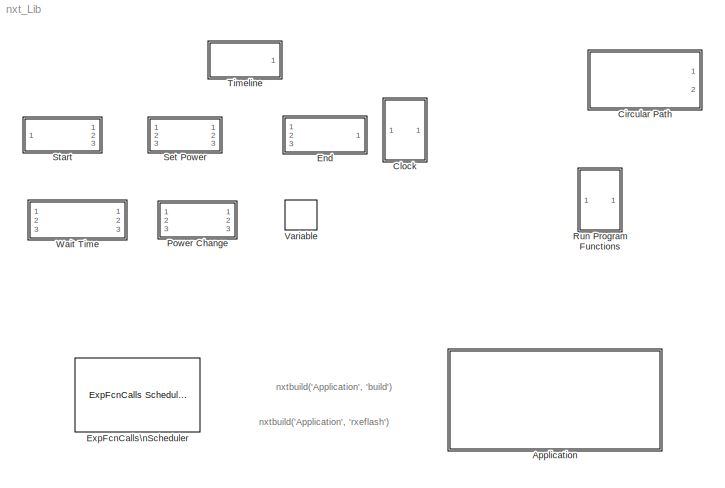
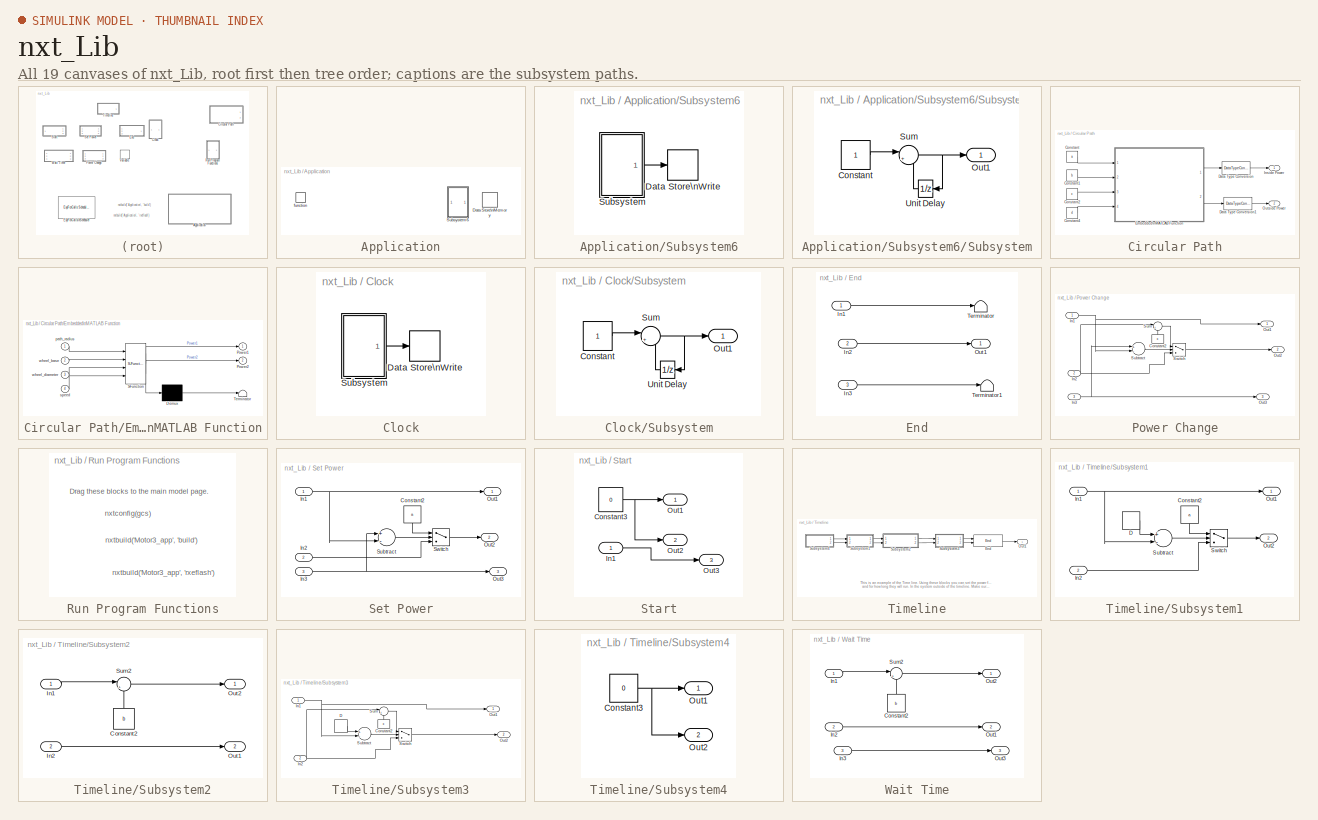
[diagram: thumbnail index - all 19 canvases of the model, root first then tree order]
MODEL nxt_Lib
KIND library
BLOCK [SubSystem] Application
  FunctionWithSeparateData = off
  MaskHideContents = off
  MinAlgLoopOccurrences = off
  Opaque = off
  Ports = [0, 0, 0, 1]
  PropExecContextOutsideSubsystem = off
  RTWSystemCode = Auto
  RequestExecContextInheritance = off
  SID = 1
BLOCK [DataStoreMemory] Application/Data Store\nMemory
  DataStoreName = curT
  OutDataType = fixdt(1, 16)
  OutScaling = 2^0
  RTWStateStorageClass = Auto
  ReadBeforeWriteMsg = warning
  SID = 20
  VectorParams1D = on
  WriteAfterReadMsg = warning
  WriteAfterWriteMsg = warning
BLOCK [SubSystem] Application/Subsystem6
  AncestorBlock = nxt_Lib/Timeline/Subsystem6
  FunctionWithSeparateData = off
  MaskDescription = Contains the counter
  MaskDisplay = disp('Clock')
  MaskHideContents = off
  MaskIconFrame = on
  MaskIconOpaque = on
  MaskIconRotate = none
  MaskIconUnits = autoscale
  MaskPortRotate = default
  MaskType = Clock
  MinAlgLoopOccurrences = off
  Opaque = off
  Ports = []
  PropExecContextOutsideSubsystem = off
  RTWSystemCode = Auto
  RequestExecContextInheritance = off
  SID = 21
BLOCK [DataStoreWrite] Application/Subsystem6/Data Store\nWrite
  DataStoreName = curT
  SID = 1
  SampleTime = -1
BLOCK [SubSystem] Application/Subsystem6/Subsystem
  FunctionWithSeparateData = off
  MaskDescription = Increments a counter that acts as a clock that changes per unit time.
  MaskDisplay = disp('Clock')
  MaskHideContents = off
  MaskIconFrame = on
  MaskIconOpaque = on
  MaskIconRotate = none
  MaskIconUnits = autoscale
  MaskPortRotate = default
  MaskType = Clock
  MinAlgLoopOccurrences = off
  Opaque = off
  Ports = [0, 1]
  PropExecContextOutsideSubsystem = off
  RTWSystemCode = Auto
  RequestExecContextInheritance = off
  SID = 2
BLOCK [Constant] Application/Subsystem6/Subsystem/Constant
  OutDataType = fixdt(1, 16)
  OutDataTypeMode = int32
  OutDataTypeStr = int32
  OutScaling = 2^0
  SID = 3
  SampleTime = -1
BLOCK [Outport] Application/Subsystem6/Subsystem/Out1
  IconDisplay = Port number
  SID = 6
BLOCK [Sum] Application/Subsystem6/Subsystem/Sum
  AccumDataTypeStr = int8
  IconShape = round
  InputSameDT = off
  Inputs = |++
  OutDataType = fixdt(1, 16)
  OutScaling = 2^0
  Ports = [2, 1]
  SID = 4
  SaturateOnIntegerOverflow = off
BLOCK [UnitDelay] Application/Subsystem6/Subsystem/Unit Delay
  SID = 5
  SampleTime = -1
BLOCK [TriggerPort] Application/function
  Ports = []
  SID = 19
  StatesWhenEnabling = held
  TriggerType = function-call
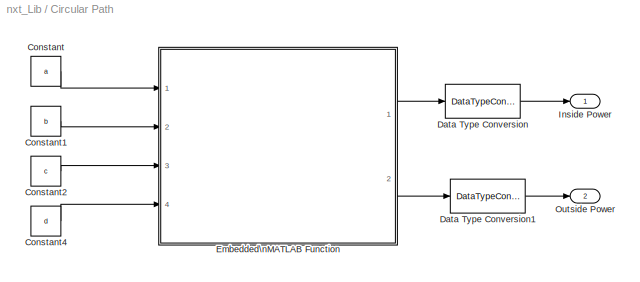
BLOCK [SubSystem] Circular Path
  FunctionWithSeparateData = off
  MaskCallbackString = |||
  MaskDescription = Inputs the power to both motors that will cause the ECRobot to run in a Circular Path.
  MaskDisplay = disp('Circular Path')
  MaskEnableString = on,on,on,on
  MaskHideContents = off
  MaskIconFrame = on
  MaskIconOpaque = on
  MaskIconRotate = none
  MaskIconUnits = autoscale
  MaskPortRotate = default
  MaskPromptString = Path Radius|Wheel Base|Wheel Diameter|Speed
  MaskStyleString = edit,edit,edit,edit
  MaskToolTipString = on,on,on,on
  MaskTunableValueString = on,on,on,on
  MaskType = Circular Path
  MaskValueString = 1|.125|.08|20
  MaskVariables = a=@1;b=@2;c=@3;d=@4;
  MaskVisibilityString = on,on,on,on
  MinAlgLoopOccurrences = off
  Opaque = off
  Ports = [0, 2]
  PropExecContextOutsideSubsystem = off
  RTWSystemCode = Auto
  RequestExecContextInheritance = off
  SID = 2
BLOCK [Constant] Circular Path/Constant
  OutDataType = sfix(16)
  OutDataTypeMode = single
  OutDataTypeStr = single
  OutScaling = 2^0
  SID = 22
  SampleTime = -1
  Value = a
BLOCK [Constant] Circular Path/Constant1
  OutDataType = sfix(16)
  OutDataTypeMode = single
  OutDataTypeStr = single
  OutScaling = 2^0
  SID = 23
  SampleTime = -1
  Value = b
BLOCK [Constant] Circular Path/Constant2
  OutDataType = sfix(16)
  OutDataTypeMode = single
  OutDataTypeStr = single
  OutScaling = 2^0
  SID = 24
  SampleTime = -1
  Value = c
BLOCK [Constant] Circular Path/Constant4
  OutDataType = sfix(16)
  OutDataTypeMode = single
  OutDataTypeStr = single
  OutScaling = 2^0
  SID = 25
  SampleTime = -1
  Value = d
BLOCK [DataTypeConversion] Circular Path/Data Type Conversion
  OutDataType = sfix(16)
  OutDataTypeMode = int8
  OutDataTypeStr = int8
  OutScaling = 2^0
  RndMeth = Floor
  SID = 26
  SaturateOnIntegerOverflow = off
BLOCK [DataTypeConversion] Circular Path/Data Type Conversion1
  OutDataType = sfix(16)
  OutDataTypeMode = int8
  OutDataTypeStr = int8
  OutScaling = 2^0
  RndMeth = Floor
  SID = 27
  SaturateOnIntegerOverflow = off
BLOCK [SubSystem] Circular Path/Embedded\nMATLAB Function
  FunctionWithSeparateData = off
  MaskDescription = Embedded MATLAB block
  MaskDisplay = disp('circle_path');
  MaskHideContents = off
  MaskIconFrame = on
  MaskIconOpaque = off
  MaskIconRotate = none
  MaskIconUnits = autoscale
  MaskPortRotate = default
  MaskSelfModifiable = on
  MaskType = Stateflow
  MinAlgLoopOccurrences = off
  Opaque = off
  PermitHierarchicalResolution = ExplicitOnly
  Ports = [4, 2]
  PropExecContextOutsideSubsystem = off
  RTWSystemCode = Auto
  RequestExecContextInheritance = off
  SID = 28
BLOCK [Demux] Circular Path/Embedded\nMATLAB Function/ Demux 
  Outputs = 1
  Ports = [1, 1]
  SID = 11
BLOCK [S-Function] Circular Path/Embedded\nMATLAB Function/ SFunction 
  EnableBusSupport = off
  FunctionName = sf_sfun
  PortCounts = [4 3]
  Ports = [4, 3]
  SID = 10
  Tag = Stateflow S-Function nxt_Lib 2
BLOCK [Terminator] Circular Path/Embedded\nMATLAB Function/ Terminator 
  SID = 13
BLOCK [Outport] Circular Path/Embedded\nMATLAB Function/Power1
  IconDisplay = Port number
  OutDataType = sfix(16)
  OutScaling = 2^0
  SID = 8
BLOCK [Outport] Circular Path/Embedded\nMATLAB Function/Power2
  IconDisplay = Port number
  Port = 2
  SID = 9
BLOCK [Inport] Circular Path/Embedded\nMATLAB Function/path_radius
  IconDisplay = Port number
  OutDataType = sfix(16)
  OutScaling = 2^0
  SID = 1
BLOCK [Inport] Circular Path/Embedded\nMATLAB Function/speed
  IconDisplay = Port number
  Port = 4
  SID = 4
BLOCK [Inport] Circular Path/Embedded\nMATLAB Function/wheel_base
  IconDisplay = Port number
  Port = 2
  SID = 2
BLOCK [Inport] Circular Path/Embedded\nMATLAB Function/wheel_diameter
  IconDisplay = Port number
  Port = 3
  SID = 3
BLOCK [Outport] Circular Path/Inside Power
  IconDisplay = Port number
  SID = 29
BLOCK [Outport] Circular Path/Outside Power
  IconDisplay = Port number
  Port = 2
  SID = 30
BLOCK [SubSystem] Clock
  AncestorBlock = nxt_Lib/Timeline/Subsystem6
  FunctionWithSeparateData = off
  MaskDescription = Contains the counter
  MaskDisplay = disp('Clock')
  MaskHideContents = off
  MaskIconFrame = on
  MaskIconOpaque = on
  MaskIconRotate = none
  MaskIconUnits = autoscale
  MaskPortRotate = default
  MaskType = Clock
  MinAlgLoopOccurrences = off
  Opaque = off
  Ports = []
  PropExecContextOutsideSubsystem = off
  RTWSystemCode = Auto
  RequestExecContextInheritance = off
  SID = 3
BLOCK [DataStoreWrite] Clock/Data Store\nWrite
  DataStoreName = curT
  SID = 1
  SampleTime = -1
BLOCK [SubSystem] Clock/Subsystem
  FunctionWithSeparateData = off
  MaskDescription = Increments a counter that acts as a clock that changes per unit time.
  MaskDisplay = disp('Clock')
  MaskHideContents = off
  MaskIconFrame = on
  MaskIconOpaque = on
  MaskIconRotate = none
  MaskIconUnits = autoscale
  MaskPortRotate = default
  MaskType = Clock
  MinAlgLoopOccurrences = off
  Opaque = off
  Ports = [0, 1]
  PropExecContextOutsideSubsystem = off
  RTWSystemCode = Auto
  RequestExecContextInheritance = off
  SID = 2
BLOCK [Constant] Clock/Subsystem/Constant
  OutDataType = fixdt(1, 16)
  OutDataTypeMode = int32
  OutDataTypeStr = int32
  OutScaling = 2^0
  SID = 3
  SampleTime = -1
BLOCK [Outport] Clock/Subsystem/Out1
  IconDisplay = Port number
  SID = 6
BLOCK [Sum] Clock/Subsystem/Sum
  AccumDataTypeStr = int8
  IconShape = round
  InputSameDT = off
  Inputs = |++
  OutDataType = fixdt(1, 16)
  OutScaling = 2^0
  Ports = [2, 1]
  SID = 4
  SaturateOnIntegerOverflow = off
BLOCK [UnitDelay] Clock/Subsystem/Unit Delay
  SID = 5
  SampleTime = -1
BLOCK [SubSystem] End
  FunctionWithSeparateData = off
  MaskDescription = This terminates the time line and passes the final motor speed to the motor. However, it leaves everything running at it's previous power.
  MaskDisplay = disp('End')
  MaskHideContents = off
  MaskIconFrame = on
  MaskIconOpaque = on
  MaskIconRotate = none
  MaskIconUnits = autoscale
  MaskPortRotate = default
  MaskType = End Program
  MinAlgLoopOccurrences = off
  Opaque = off
  Ports = [3, 1]
  PropExecContextOutsideSubsystem = off
  RTWSystemCode = Auto
  RequestExecContextInheritance = off
  SID = 4
BLOCK [Inport] End/In1
  IconDisplay = Port number
  SID = 31
BLOCK [Inport] End/In2
  DataType = int32
  IconDisplay = Port number
  OutDataTypeStr = int32
  Port = 2
  SID = 32
BLOCK [Inport] End/In3
  IconDisplay = Port number
  Port = 3
  SID = 33
BLOCK [Outport] End/Out1
  IconDisplay = Port number
  SID = 37
BLOCK [Terminator] End/Terminator
  SID = 35
BLOCK [Terminator] End/Terminator1
  SID = 36
BLOCK [Reference] ExpFcnCalls\nScheduler  REF=ecrobot_nxt_lib/ExpFcnCalls Scheduler  (lib defined in mdl_4d1b16930ca4)
  Ports = [0, 1]
  SID = 38
  SourceBlock = ecrobot_nxt_lib/ExpFcnCalls Scheduler
  SourceType = Exported Function-Calls Scheduler
  bd_mode = Slave
  fcname = 'fcn'
  fctrigger = [1]
  platform = OSEK
  stacksize = [512]
  ts = 0.001
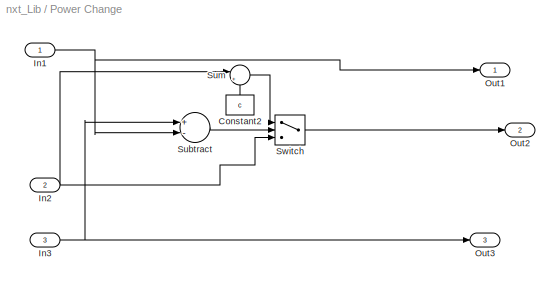
BLOCK [SubSystem] Power Change
  FunctionWithSeparateData = off
  MaskDescription = This will add or subtract from the power amount
  MaskDisplay = disp('Power Change')
  MaskEnableString = on
  MaskHideContents = off
  MaskIconFrame = on
  MaskIconOpaque = on
  MaskIconRotate = none
  MaskIconUnits = autoscale
  MaskPortRotate = default
  MaskPromptString = Power Change
  MaskStyleString = edit
  MaskToolTipString = on
  MaskTunableValueString = on
  MaskType = Power Change
  MaskValueString = 60
  MaskVariables = c=@1;
  MaskVisibilityString = on
  MinAlgLoopOccurrences = off
  Opaque = off
  Ports = [3, 3]
  PropExecContextOutsideSubsystem = off
  RTWSystemCode = Auto
  RequestExecContextInheritance = off
  SID = 5
BLOCK [Constant] Power Change/Constant2
  OutDataType = fixdt(1, 16)
  OutDataTypeMode = int32
  OutDataTypeStr = int32
  OutScaling = 2^0
  SID = 42
  SampleTime = -1
  Value = c
BLOCK [Inport] Power Change/In1
  IconDisplay = Port number
  SID = 39
BLOCK [Inport] Power Change/In2
  IconDisplay = Port number
  Port = 2
  SID = 40
BLOCK [Inport] Power Change/In3
  IconDisplay = Port number
  Port = 3
  SID = 41
BLOCK [Outport] Power Change/Out1
  IconDisplay = Port number
  SID = 46
BLOCK [Outport] Power Change/Out2
  IconDisplay = Port number
  Port = 2
  SID = 47
BLOCK [Outport] Power Change/Out3
  IconDisplay = Port number
  Port = 3
  SID = 48
BLOCK [Sum] Power Change/Subtract
  InputSameDT = off
  Inputs = +-
  OutDataType = fixdt(1, 16)
  OutDataTypeMode = Inherit via internal rule
  OutDataTypeStr = Inherit: Inherit via internal rule
  OutScaling = 2^-10
  Ports = [2, 1]
  SID = 43
  SaturateOnIntegerOverflow = off
BLOCK [Sum] Power Change/Sum
  IconShape = round
  InputSameDT = off
  Inputs = |++
  OutDataType = sfix(16)
  OutDataTypeMode = Inherit via internal rule
  OutDataTypeStr = Inherit: Inherit via internal rule
  OutScaling = 2^0
  Ports = [2, 1]
  SID = 44
  SaturateOnIntegerOverflow = off
BLOCK [Switch] Power Change/Switch
  Criteria = u2 > Threshold
  InputSameDT = off
  OutDataType = fixdt(1, 16)
  OutScaling = 2^0
  SID = 45
  SaturateOnIntegerOverflow = off
BLOCK [SubSystem] Run Program Functions
  FunctionWithSeparateData = off
  MaskHideContents = off
  MinAlgLoopOccurrences = off
  Opaque = off
  Ports = []
  PropExecContextOutsideSubsystem = off
  RTWSystemCode = Auto
  RequestExecContextInheritance = off
  SID = 6
BLOCK [SubSystem] Set Power
  FunctionWithSeparateData = off
  MaskDescription = This box sets the power
  MaskDisplay = disp('Set Power')
  MaskEnableString = on
  MaskHideContents = off
  MaskIconFrame = on
  MaskIconOpaque = on
  MaskIconRotate = none
  MaskIconUnits = autoscale
  MaskPortRotate = default
  MaskPromptString = Set Power
  MaskStyleString = edit
  MaskToolTipString = on
  MaskTunableValueString = on
  MaskType = Set Power
  MaskValueString = 60
  MaskVariables = a=@1;
  MaskVisibilityString = on
  MinAlgLoopOccurrences = off
  Opaque = off
  Ports = [3, 3]
  PropExecContextOutsideSubsystem = off
  RTWSystemCode = Auto
  RequestExecContextInheritance = off
  SID = 7
BLOCK [Constant] Set Power/Constant2
  OutDataType = fixdt(1, 16)
  OutDataTypeMode = int32
  OutDataTypeStr = int32
  OutScaling = 2^0
  SID = 52
  SampleTime = -1
  Value = a
BLOCK [Inport] Set Power/In1
  IconDisplay = Port number
  SID = 49
BLOCK [Inport] Set Power/In2
  IconDisplay = Port number
  Port = 2
  SID = 50
BLOCK [Inport] Set Power/In3
  IconDisplay = Port number
  Port = 3
  SID = 51
BLOCK [Outport] Set Power/Out1
  IconDisplay = Port number
  SID = 55
BLOCK [Outport] Set Power/Out2
  IconDisplay = Port number
  Port = 2
  SID = 56
BLOCK [Outport] Set Power/Out3
  IconDisplay = Port number
  Port = 3
  SID = 57
BLOCK [Sum] Set Power/Subtract
  InputSameDT = off
  Inputs = +-
  OutDataType = fixdt(1, 16)
  OutScaling = 2^-10
  Ports = [2, 1]
  SID = 53
  SaturateOnIntegerOverflow = off
BLOCK [Switch] Set Power/Switch
  Criteria = u2 > Threshold
  InputSameDT = off
  OutDataType = fixdt(1, 16)
  OutScaling = 2^0
  SID = 54
  SaturateOnIntegerOverflow = off
BLOCK [SubSystem] Start
  FunctionWithSeparateData = off
  MaskDescription = Initializes the timeline
  MaskDisplay = disp('Start')
  MaskHideContents = off
  MaskIconFrame = on
  MaskIconOpaque = on
  MaskIconRotate = none
  MaskIconUnits = autoscale
  MaskPortRotate = default
  MaskType = Start
  MinAlgLoopOccurrences = off
  Opaque = off
  Ports = [1, 3]
  PropExecContextOutsideSubsystem = off
  RTWSystemCode = Auto
  RequestExecContextInheritance = off
  SID = 8
BLOCK [Constant] Start/Constant3
  OutDataType = fixdt(1, 16)
  OutDataTypeMode = int32
  OutDataTypeStr = int32
  OutScaling = 2^0
  SID = 59
  SampleTime = 1
  Value = 0
BLOCK [Inport] Start/In1
  IconDisplay = Port number
  SID = 58
BLOCK [Outport] Start/Out1
  IconDisplay = Port number
  SID = 60
BLOCK [Outport] Start/Out2
  IconDisplay = Port number
  Port = 2
  SID = 61
BLOCK [Outport] Start/Out3
  IconDisplay = Port number
  Port = 3
  SID = 62
BLOCK [SubSystem] Timeline
  AncestorBlock = nxt_Lib/Timeline
  FunctionWithSeparateData = off
  MaskHideContents = off
  MinAlgLoopOccurrences = off
  Opaque = off
  Ports = [0, 1]
  PropExecContextOutsideSubsystem = off
  RTWSystemCode = Auto
  RequestExecContextInheritance = off
  SID = 9
BLOCK [Reference] Timeline/End  REF=nxt_Lib/End
  FunctionWithSeparateData = off
  Ports = [2, 1]
  RTWMemSecDataConstants = Inherit from model
  RTWMemSecDataInternal = Inherit from model
  RTWMemSecDataParameters = Inherit from model
  RTWMemSecFuncExecute = Inherit from model
  RTWMemSecFuncInitTerm = Inherit from model
  SID = 1
  ShowPortLabels = FromPortIcon
  SourceBlock = nxt_Lib/End
  SourceType = End Program
  SystemSampleTime = -1
BLOCK [Outport] Timeline/Out1
  IconDisplay = Port number
  SID = 32
BLOCK [SubSystem] Timeline/Subsystem1
  FunctionWithSeparateData = off
  MaskDescription = This box sets the power
  MaskDisplay = disp('Set Power')
  MaskEnableString = on
  MaskHideContents = off
  MaskIconFrame = on
  MaskIconOpaque = on
  MaskIconRotate = none
  MaskIconUnits = autoscale
  MaskPortRotate = default
  MaskPromptString = Set Power
  MaskStyleString = edit
  MaskToolTipString = on
  MaskTunableValueString = on
  MaskType = Set Power
  MaskValueString = 0
  MaskVariables = a=@1;
  MaskVisibilityString = on
  MinAlgLoopOccurrences = off
  Opaque = off
  Ports = [2, 2]
  PropExecContextOutsideSubsystem = off
  RTWSystemCode = Auto
  RequestExecContextInheritance = off
  SID = 2
BLOCK [Constant] Timeline/Subsystem1/Constant2
  OutDataType = fixdt(1, 16)
  OutDataTypeMode = int8
  OutDataTypeStr = int8
  OutScaling = 2^0
  SID = 5
  SampleTime = -1
  Value = a
BLOCK [DataStoreRead] Timeline/Subsystem1/D
  DataStoreName = curT
  SID = 6
  SampleTime = -1
BLOCK [Inport] Timeline/Subsystem1/In1
  IconDisplay = Port number
  SID = 3
BLOCK [Inport] Timeline/Subsystem1/In2
  IconDisplay = Port number
  Port = 2
  SID = 4
BLOCK [Outport] Timeline/Subsystem1/Out1
  IconDisplay = Port number
  SID = 9
BLOCK [Outport] Timeline/Subsystem1/Out2
  IconDisplay = Port number
  Port = 2
  SID = 10
BLOCK [Sum] Timeline/Subsystem1/Subtract
  InputSameDT = off
  Inputs = +-
  OutDataType = fixdt(1, 16)
  OutScaling = 2^-10
  Ports = [2, 1]
  SID = 7
  SaturateOnIntegerOverflow = off
BLOCK [Switch] Timeline/Subsystem1/Switch
  Criteria = u2 > Threshold
  InputSameDT = off
  OutDataType = fixdt(1, 16)
  OutScaling = 2^0
  SID = 8
  SaturateOnIntegerOverflow = off
BLOCK [SubSystem] Timeline/Subsystem2
  FunctionWithSeparateData = off
  MaskDisplay = disp('Wait Time')
  MaskEnableString = on
  MaskHideContents = off
  MaskIconFrame = on
  MaskIconOpaque = on
  MaskIconRotate = none
  MaskIconUnits = autoscale
  MaskPortRotate = default
  MaskPromptString = Wait Time (seconds)
  MaskStyleString = edit
  MaskToolTipString = on
  MaskTunableValueString = on
  MaskType = Wait Time
  MaskValueString = 5000
  MaskVariables = b=@1;
  MaskVisibilityString = on
  MinAlgLoopOccurrences = off
  Opaque = off
  Ports = [2, 2]
  PropExecContextOutsideSubsystem = off
  RTWSystemCode = Auto
  RequestExecContextInheritance = off
  SID = 11
BLOCK [Constant] Timeline/Subsystem2/Constant2
  OutDataType = fixdt(1, 16)
  OutDataTypeMode = int32
  OutDataTypeStr = int32
  OutScaling = 2^0
  SID = 14
  SampleTime = -1
  Value = b
BLOCK [Inport] Timeline/Subsystem2/In1
  IconDisplay = Port number
  SID = 12
BLOCK [Inport] Timeline/Subsystem2/In2
  IconDisplay = Port number
  Port = 2
  SID = 13
BLOCK [Outport] Timeline/Subsystem2/Out1
  IconDisplay = Port number
  Port = 2
  SID = 17
BLOCK [Outport] Timeline/Subsystem2/Out2
  IconDisplay = Port number
  SID = 16
BLOCK [Sum] Timeline/Subsystem2/Sum2
  IconShape = round
  InputSameDT = off
  Inputs = |++
  OutDataType = fixdt(1, 16)
  OutScaling = 2^0
  Ports = [2, 1]
  SID = 15
  SaturateOnIntegerOverflow = off
BLOCK [SubSystem] Timeline/Subsystem3
  FunctionWithSeparateData = off
  MaskDescription = This will add or subtract from the power amount
  MaskDisplay = disp('Power Change')
  MaskEnableString = on
  MaskHideContents = off
  MaskIconFrame = on
  MaskIconOpaque = on
  MaskIconRotate = none
  MaskIconUnits = autoscale
  MaskPortRotate = default
  MaskPromptString = Power Change
  MaskStyleString = edit
  MaskToolTipString = on
  MaskTunableValueString = on
  MaskType = Power Change
  MaskValueString = 100
  MaskVariables = c=@1;
  MaskVisibilityString = on
  MinAlgLoopOccurrences = off
  Opaque = off
  Ports = [2, 2]
  PropExecContextOutsideSubsystem = off
  RTWSystemCode = Auto
  RequestExecContextInheritance = off
  SID = 18
BLOCK [Constant] Timeline/Subsystem3/Constant2
  OutDataType = fixdt(1, 16)
  OutDataTypeMode = int32
  OutDataTypeStr = int32
  OutScaling = 2^0
  SID = 21
  SampleTime = -1
  Value = c
BLOCK [DataStoreRead] Timeline/Subsystem3/D
  DataStoreName = curT
  SID = 22
  SampleTime = -1
BLOCK [Inport] Timeline/Subsystem3/In1
  IconDisplay = Port number
  SID = 19
BLOCK [Inport] Timeline/Subsystem3/In2
  IconDisplay = Port number
  Port = 2
  SID = 20
BLOCK [Outport] Timeline/Subsystem3/Out1
  IconDisplay = Port number
  SID = 26
BLOCK [Outport] Timeline/Subsystem3/Out2
  IconDisplay = Port number
  Port = 2
  SID = 27
BLOCK [Sum] Timeline/Subsystem3/Subtract
  InputSameDT = off
  Inputs = +-
  OutDataType = fixdt(1, 16)
  OutDataTypeMode = Inherit via internal rule
  OutDataTypeStr = Inherit: Inherit via internal rule
  OutScaling = 2^-10
  Ports = [2, 1]
  SID = 23
  SaturateOnIntegerOverflow = off
BLOCK [Sum] Timeline/Subsystem3/Sum
  IconShape = round
  InputSameDT = off
  Inputs = |++
  OutDataType = sfix(16)
  OutDataTypeMode = Inherit via internal rule
  OutDataTypeStr = Inherit: Inherit via internal rule
  OutScaling = 2^0
  Ports = [2, 1]
  SID = 24
  SaturateOnIntegerOverflow = off
BLOCK [Switch] Timeline/Subsystem3/Switch
  Criteria = u2 > Threshold
  InputSameDT = off
  OutDataType = fixdt(1, 16)
  OutScaling = 2^0
  SID = 25
  SaturateOnIntegerOverflow = off
BLOCK [SubSystem] Timeline/Subsystem4
  FunctionWithSeparateData = off
  MaskDescription = Initializes the timeline
  MaskDisplay = disp('Start')
  MaskHideContents = off
  MaskIconFrame = on
  MaskIconOpaque = on
  MaskIconRotate = none
  MaskIconUnits = autoscale
  MaskPortRotate = default
  MaskType = Start
  MinAlgLoopOccurrences = off
  Opaque = off
  Ports = [0, 2]
  PropExecContextOutsideSubsystem = off
  RTWSystemCode = Auto
  RequestExecContextInheritance = off
  SID = 28
BLOCK [Constant] Timeline/Subsystem4/Constant3
  OutDataType = fixdt(1, 16)
  OutDataTypeMode = int32
  OutDataTypeStr = int32
  OutScaling = 2^0
  SID = 29
  SampleTime = -1
  Value = 0
BLOCK [Outport] Timeline/Subsystem4/Out1
  IconDisplay = Port number
  SID = 30
BLOCK [Outport] Timeline/Subsystem4/Out2
  IconDisplay = Port number
  Port = 2
  SID = 31
BLOCK [DataStoreMemory] Variable
  DataStoreName = curT
  OutDataType = fixdt(1, 16)
  OutScaling = 2^0
  RTWStateStorageClass = Auto
  ReadBeforeWriteMsg = warning
  SID = 63
  VectorParams1D = on
  WriteAfterReadMsg = warning
  WriteAfterWriteMsg = warning
BLOCK [SubSystem] Wait Time
  FunctionWithSeparateData = off
  MaskDisplay = disp('Wait Time')
  MaskEnableString = on
  MaskHideContents = off
  MaskIconFrame = on
  MaskIconOpaque = on
  MaskIconRotate = none
  MaskIconUnits = autoscale
  MaskPortRotate = default
  MaskPromptString = Wait Time (seconds)
  MaskStyleString = edit
  MaskToolTipString = on
  MaskTunableValueString = on
  MaskType = Wait Time
  MaskValueString = 3
  MaskVariables = b=@1;
  MaskVisibilityString = on
  MinAlgLoopOccurrences = off
  Opaque = off
  Ports = [3, 3]
  PropExecContextOutsideSubsystem = off
  RTWSystemCode = Auto
  RequestExecContextInheritance = off
  SID = 10
BLOCK [Constant] Wait Time/Constant2
  OutDataType = fixdt(1, 16)
  OutDataTypeMode = int32
  OutDataTypeStr = int32
  OutScaling = 2^0
  SID = 14
  SampleTime = -1
  Value = b
BLOCK [Inport] Wait Time/In1
  IconDisplay = Port number
  SID = 11
BLOCK [Inport] Wait Time/In2
  IconDisplay = Port number
  Port = 2
  SID = 12
BLOCK [Inport] Wait Time/In3
  IconDisplay = Port number
  Port = 3
  SID = 13
BLOCK [Outport] Wait Time/Out1
  IconDisplay = Port number
  Port = 2
  SID = 17
BLOCK [Outport] Wait Time/Out2
  IconDisplay = Port number
  SID = 16
BLOCK [Outport] Wait Time/Out3
  IconDisplay = Port number
  Port = 3
  SID = 18
BLOCK [Sum] Wait Time/Sum2
  IconShape = round
  InputSameDT = off
  Inputs = |++
  OutDataType = fixdt(1, 16)
  OutScaling = 2^0
  Ports = [2, 1]
  SID = 15
  SaturateOnIntegerOverflow = off
ANNOTATION (root): nxtbuild('Application', 'build')
ANNOTATION (root): nxtbuild('Application', 'rxeflash')
ANNOTATION Run Program Functions: Drag these blocks to the main model page.
ANNOTATION Run Program Functions: nxtbuild('Motor3_app', 'build')
ANNOTATION Run Program Functions: nxtbuild('Motor3_app', 'rxeflash')
ANNOTATION Run Program Functions: nxtconfig(gcs)
ANNOTATION Timeline: This is an example of the Time line. Using these blocks you can set the power for the motors\nand for how long they will run. In the system outside of the timeline. Make sure to place the clock block and the Data Store Block.
LINE Application/Subsystem6/Subsystem/Constant:1 -> Application/Subsystem6/Subsystem/Sum:1
NET Application/Subsystem6/Subsystem/Sum:1 -> Application/Subsystem6/Subsystem/Out1:1, Application/Subsystem6/Subsystem/Unit Delay:1
LINE Application/Subsystem6/Subsystem/Unit Delay:1 -> Application/Subsystem6/Subsystem/Sum:2
LINE Application/Subsystem6/Subsystem:1 -> Application/Subsystem6/Data Store\nWrite:1
LINE Circular Path/Constant1:1 -> Circular Path/Embedded\nMATLAB Function:2
LINE Circular Path/Constant2:1 -> Circular Path/Embedded\nMATLAB Function:3
LINE Circular Path/Constant4:1 -> Circular Path/Embedded\nMATLAB Function:4
LINE Circular Path/Constant:1 -> Circular Path/Embedded\nMATLAB Function:1
LINE Circular Path/Data Type Conversion1:1 -> Circular Path/Outside Power:1
LINE Circular Path/Data Type Conversion:1 -> Circular Path/Inside Power:1
LINE Circular Path/Embedded\nMATLAB Function/ Demux :1 -> Circular Path/Embedded\nMATLAB Function/ Terminator :1
LINE Circular Path/Embedded\nMATLAB Function/ SFunction :1 -> Circular Path/Embedded\nMATLAB Function/ Demux :1
LINE Circular Path/Embedded\nMATLAB Function/ SFunction :2 -> Circular Path/Embedded\nMATLAB Function/Power1:1
LINE Circular Path/Embedded\nMATLAB Function/ SFunction :3 -> Circular Path/Embedded\nMATLAB Function/Power2:1
LINE Circular Path/Embedded\nMATLAB Function/path_radius:1 -> Circular Path/Embedded\nMATLAB Function/ SFunction :1
LINE Circular Path/Embedded\nMATLAB Function/speed:1 -> Circular Path/Embedded\nMATLAB Function/ SFunction :4
LINE Circular Path/Embedded\nMATLAB Function/wheel_base:1 -> Circular Path/Embedded\nMATLAB Function/ SFunction :2
LINE Circular Path/Embedded\nMATLAB Function/wheel_diameter:1 -> Circular Path/Embedded\nMATLAB Function/ SFunction :3
LINE Circular Path/Embedded\nMATLAB Function:1 -> Circular Path/Data Type Conversion:1
LINE Circular Path/Embedded\nMATLAB Function:2 -> Circular Path/Data Type Conversion1:1
LINE Clock/Subsystem/Constant:1 -> Clock/Subsystem/Sum:1
NET Clock/Subsystem/Sum:1 -> Clock/Subsystem/Out1:1, Clock/Subsystem/Unit Delay:1
LINE Clock/Subsystem/Unit Delay:1 -> Clock/Subsystem/Sum:2
LINE Clock/Subsystem:1 -> Clock/Data Store\nWrite:1
LINE End/In1:1 -> End/Terminator:1
LINE End/In2:1 -> End/Out1:1
LINE End/In3:1 -> End/Terminator1:1
LINE Power Change/Constant2:1 -> Power Change/Sum:2
NET Power Change/In1:1 -> Power Change/Out1:1, Power Change/Subtract:2
NET Power Change/In2:1 -> Power Change/Sum:1, Power Change/Switch:3
NET Power Change/In3:1 -> Power Change/Out3:1, Power Change/Subtract:1
LINE Power Change/Subtract:1 -> Power Change/Switch:2
LINE Power Change/Sum:1 -> Power Change/Switch:1
LINE Power Change/Switch:1 -> Power Change/Out2:1
LINE Set Power/Constant2:1 -> Set Power/Switch:1
NET Set Power/In1:1 -> Set Power/Out1:1, Set Power/Subtract:2
LINE Set Power/In2:1 -> Set Power/Switch:3
NET Set Power/In3:1 -> Set Power/Out3:1, Set Power/Subtract:1
LINE Set Power/Subtract:1 -> Set Power/Switch:2
LINE Set Power/Switch:1 -> Set Power/Out2:1
NET Start/Constant3:1 -> Start/Out1:1, Start/Out2:1
LINE Start/In1:1 -> Start/Out3:1
LINE Timeline/End:1 -> Timeline/Out1:1
LINE Timeline/Subsystem1/Constant2:1 -> Timeline/Subsystem1/Switch:1
LINE Timeline/Subsystem1/D:1 -> Timeline/Subsystem1/Subtract:1
NET Timeline/Subsystem1/In1:1 -> Timeline/Subsystem1/Out1:1, Timeline/Subsystem1/Subtract:2
LINE Timeline/Subsystem1/In2:1 -> Timeline/Subsystem1/Switch:3
LINE Timeline/Subsystem1/Subtract:1 -> Timeline/Subsystem1/Switch:2
LINE Timeline/Subsystem1/Switch:1 -> Timeline/Subsystem1/Out2:1
LINE Timeline/Subsystem1:1 -> Timeline/Subsystem2:1
LINE Timeline/Subsystem1:2 -> Timeline/Subsystem2:2
LINE Timeline/Subsystem2/Constant2:1 -> Timeline/Subsystem2/Sum2:2
LINE Timeline/Subsystem2/In1:1 -> Timeline/Subsystem2/Sum2:1
LINE Timeline/Subsystem2/In2:1 -> Timeline/Subsystem2/Out1:1
LINE Timeline/Subsystem2/Sum2:1 -> Timeline/Subsystem2/Out2:1
LINE Timeline/Subsystem2:1 -> Timeline/Subsystem3:1
LINE Timeline/Subsystem2:2 -> Timeline/Subsystem3:2
LINE Timeline/Subsystem3/Constant2:1 -> Timeline/Subsystem3/Sum:2
LINE Timeline/Subsystem3/D:1 -> Timeline/Subsystem3/Subtract:1
NET Timeline/Subsystem3/In1:1 -> Timeline/Subsystem3/Out1:1, Timeline/Subsystem3/Subtract:2
NET Timeline/Subsystem3/In2:1 -> Timeline/Subsystem3/Sum:1, Timeline/Subsystem3/Switch:3
LINE Timeline/Subsystem3/Subtract:1 -> Timeline/Subsystem3/Switch:2
LINE Timeline/Subsystem3/Sum:1 -> Timeline/Subsystem3/Switch:1
LINE Timeline/Subsystem3/Switch:1 -> Timeline/Subsystem3/Out2:1
LINE Timeline/Subsystem3:1 -> Timeline/End:1
LINE Timeline/Subsystem3:2 -> Timeline/End:2
NET Timeline/Subsystem4/Constant3:1 -> Timeline/Subsystem4/Out1:1, Timeline/Subsystem4/Out2:1
LINE Timeline/Subsystem4:1 -> Timeline/Subsystem1:1
LINE Timeline/Subsystem4:2 -> Timeline/Subsystem1:2
LINE Wait Time/Constant2:1 -> Wait Time/Sum2:2
LINE Wait Time/In1:1 -> Wait Time/Sum2:1
LINE Wait Time/In2:1 -> Wait Time/Out1:1
LINE Wait Time/In3:1 -> Wait Time/Out3:1
LINE Wait Time/Sum2:1 -> Wait Time/Out2:1
note: NET lines group one-source signal fan-out (src -> all destinations, sorted); 1:1 wires keep LINE
CHART Circular Path/Embedded\nMATLAB Function states=1 transitions=1
  STATE_LABEL 'eML_blk_kernel()'
